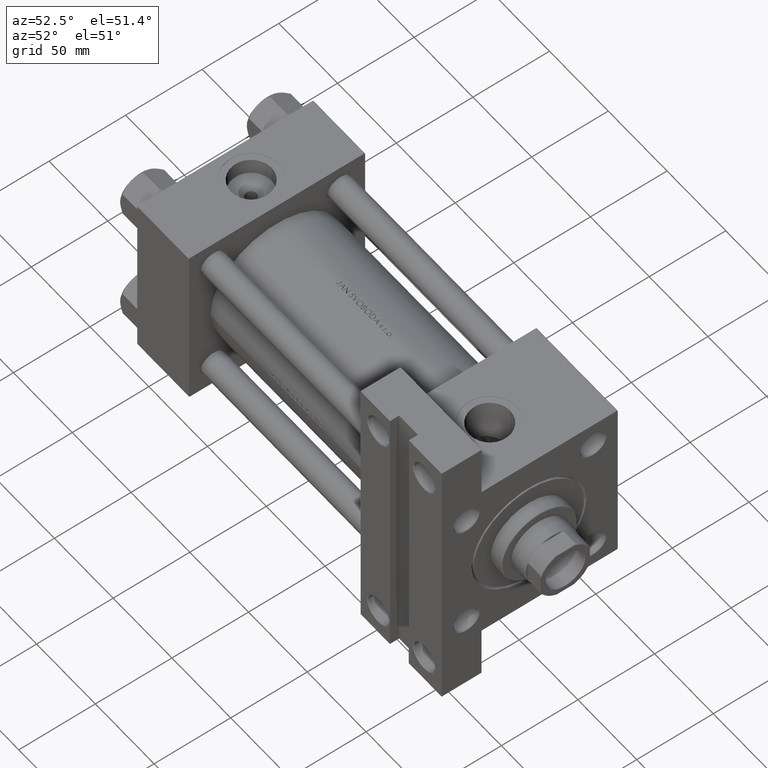
[diagram: clean part render]
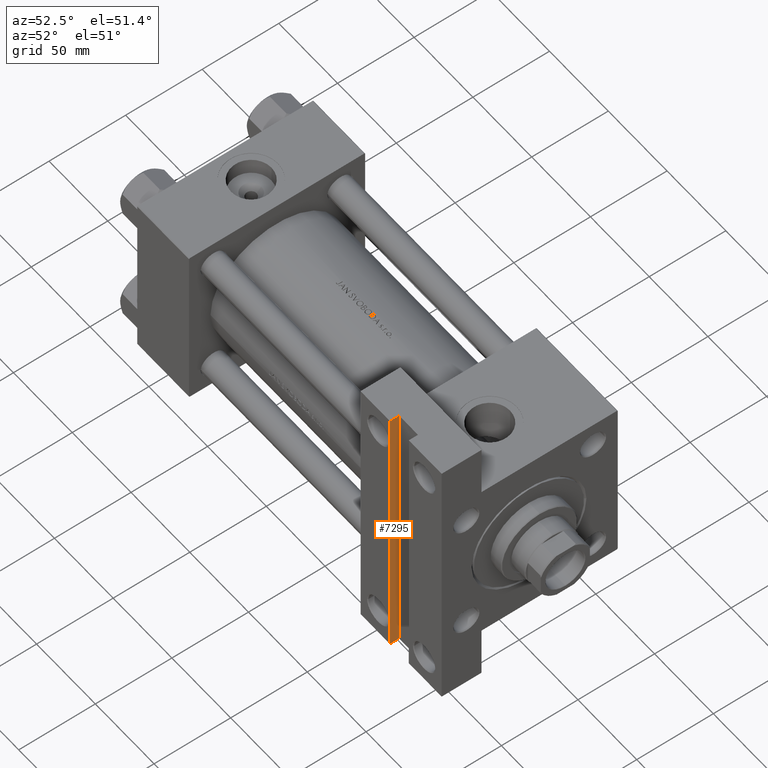
[diagram: same view with one face highlighted and labeled with its STEP entity id]
A machine part, auxiliary view. The second image highlights one B-rep face of the part: STEP entity #7295.
In plain terms, the highlighted planar face has unit normal (-1, 0, 0).
Its self-contained STEP definition (entity closure, byte-faithful):
#2419 = VECTOR ( 'NONE', #29113, 1000.000000000000000 ) ;
#3773 = DIRECTION ( 'NONE',  ( -0.000000000000000000, -0.000000000000000000, -1.000000000000000000 ) ) ;
#7145 = PLANE ( 'NONE',  #33164 ) ;
#7295 = ADVANCED_FACE ( 'NONE', ( #37326 ), #7145, .F. ) ;
#7850 = EDGE_LOOP ( 'NONE', ( #23435, #36981, #47123, #38663 ) ) ;
#9255 = VECTOR ( 'NONE', #3773, 1000.000000000000000 ) ;
#9925 = VECTOR ( 'NONE', #42211, 1000.000000000000000 ) ;
#11083 = CARTESIAN_POINT ( 'NONE',  ( 214.9999999999999716, -92.50000000000002842, -51.49999999999997868 ) ) ;
#11207 = DIRECTION ( 'NONE',  ( 0.000000000000000000, 1.000000000000000000, 0.000000000000000000 ) ) ;
#13788 = VERTEX_POINT ( 'NONE', #15215 ) ;
#13828 = EDGE_CURVE ( 'NONE', #13788, #38902, #44419, .T. ) ;
#14246 = LINE ( 'NONE', #36406, #2419 ) ;
#15215 = CARTESIAN_POINT ( 'NONE',  ( 214.9999999999999716, -92.50000000000002842, -51.49999999999997868 ) ) ;
#16093 = CARTESIAN_POINT ( 'NONE',  ( 214.9999999999999716, -92.50000000000002842, -57.49999999999997158 ) ) ;
#21991 = DIRECTION ( 'NONE',  ( 0.000000000000000000, 0.000000000000000000, 1.000000000000000000 ) ) ;
#23389 = VECTOR ( 'NONE', #11207, 1000.000000000000000 ) ;
#23435 = ORIENTED_EDGE ( 'NONE', *, *, #41400, .T. ) ;
#23969 = CARTESIAN_POINT ( 'NONE',  ( 214.9999999999999716, -92.50000000000002842, -51.49999999999997868 ) ) ;
#27394 = LINE ( 'NONE', #23969, #9925 ) ;
#28819 = EDGE_CURVE ( 'NONE', #13788, #47960, #27394, .T. ) ;
#29067 = DIRECTION ( 'NONE',  ( -1.000000000000000000, 0.000000000000000000, 0.000000000000000000 ) ) ;
#29113 = DIRECTION ( 'NONE',  ( -0.000000000000000000, -0.000000000000000000, -1.000000000000000000 ) ) ;
#29720 = CARTESIAN_POINT ( 'NONE',  ( 214.9999999999999716, -92.50000000000002842, -57.49999999999997158 ) ) ;
#30796 = VERTEX_POINT ( 'NONE', #42480 ) ;
#33129 = LINE ( 'NONE', #29720, #23389 ) ;
#33164 = AXIS2_PLACEMENT_3D ( 'NONE', #37078, #29067, #21991 ) ;
#36406 = CARTESIAN_POINT ( 'NONE',  ( 214.9999999999999716, 92.50000000000000000, -51.49999999999997868 ) ) ;
#36981 = ORIENTED_EDGE ( 'NONE', *, *, #40695, .F. ) ;
#37078 = CARTESIAN_POINT ( 'NONE',  ( 214.9999999999999716, -92.50000000000002842, -51.49999999999997868 ) ) ;
#37326 = FACE_OUTER_BOUND ( 'NONE', #7850, .T. ) ;
#38663 = ORIENTED_EDGE ( 'NONE', *, *, #13828, .T. ) ;
#38902 = VERTEX_POINT ( 'NONE', #16093 ) ;
#40695 = EDGE_CURVE ( 'NONE', #47960, #30796, #14246, .T. ) ;
#41400 = EDGE_CURVE ( 'NONE', #38902, #30796, #33129, .T. ) ;
#42211 = DIRECTION ( 'NONE',  ( 0.000000000000000000, 1.000000000000000000, 0.000000000000000000 ) ) ;
#42480 = CARTESIAN_POINT ( 'NONE',  ( 214.9999999999999716, 92.50000000000000000, -57.49999999999997158 ) ) ;
#43387 = CARTESIAN_POINT ( 'NONE',  ( 214.9999999999999716, 92.50000000000000000, -51.49999999999997868 ) ) ;
#44419 = LINE ( 'NONE', #11083, #9255 ) ;
#47123 = ORIENTED_EDGE ( 'NONE', *, *, #28819, .F. ) ;
#47960 = VERTEX_POINT ( 'NONE', #43387 ) ;